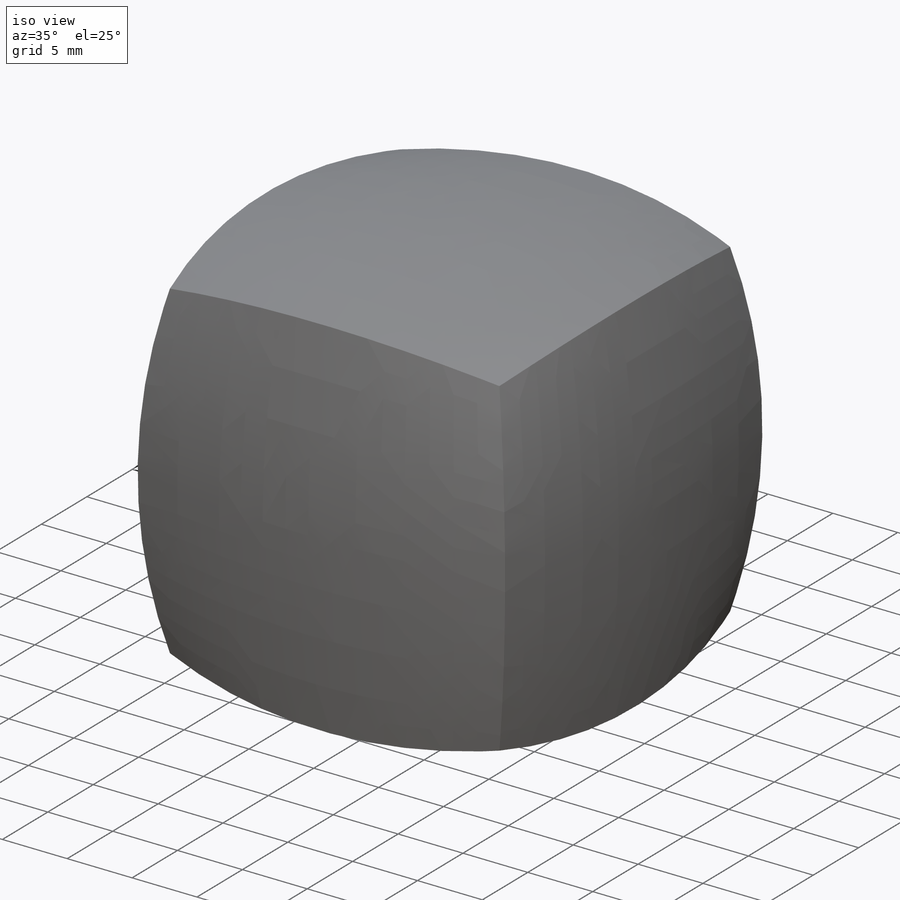
[diagram: iso view]
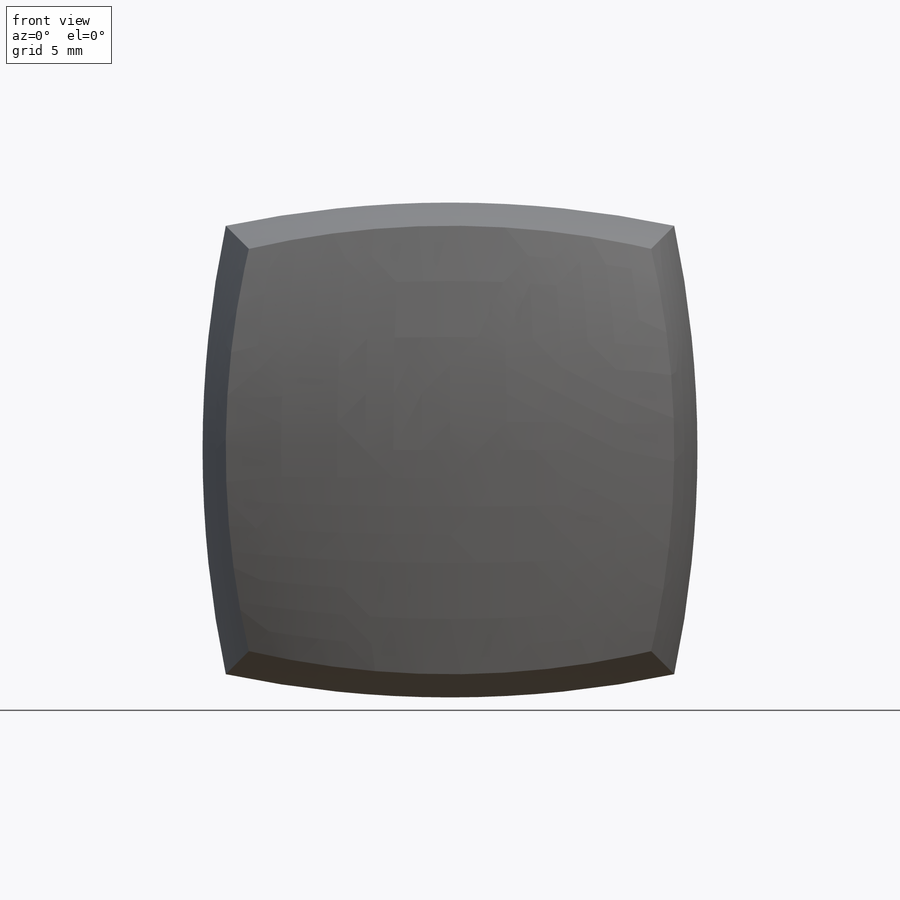
[diagram: front view]
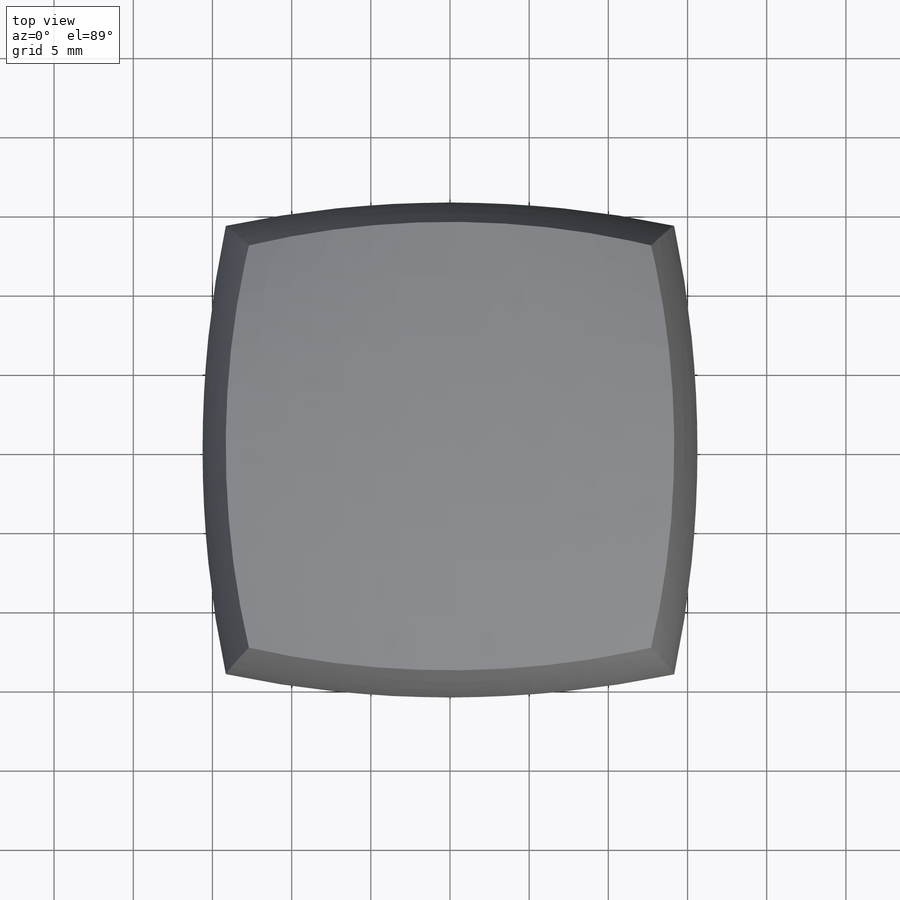
[diagram: top view]
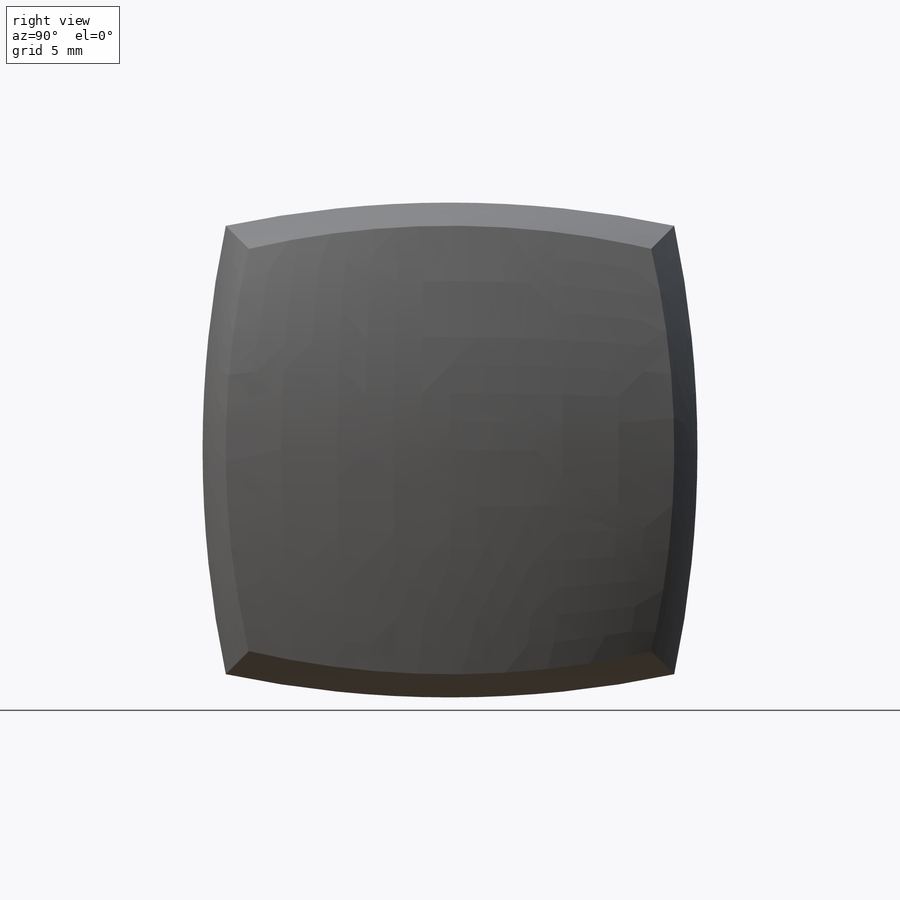
[diagram: right view]
SOLIDWORKS PART (.sldprt)
format: sldprt  version: not decoded by parser v0  size: 245,760 bytes
history: native  units: mm
features: sketch x5, plane x4, pattern_circular x2, material x1, extrude x1 + 1 further entry (+16 scaffold rows collapsed; 1 parser-record rows omitted)
feature tree (31):
  scaffold x16  (default folders/planes/origin — collapsed)
  material  "Material <not specified>"
  "Annotations"  RD1=25.4mm
  sketch  "Sketch1"  dims[D1=25.4mm D2=25.4mm]
  extrude  "Extrude1"  Depth=25.4mm
  parser-record x1  (decoder bookkeeping rows leaked as tree rows — omitted from the tree; the rows remain in map.json)
  plane  "Plane2"
  sketch  "Sketch5"  dims[D1=20.0mm]
  plane  "Plane3"
  sketch  "Sketch6"  dims[D1=20.0mm]
  plane  "Plane4"
  sketch  "Sketch7"  dims[D1=20.0mm]
  plane  "Plane5"
  sketch  "Sketch8"  dims[D1=20.0mm]
  pattern_circular  "CirPattern3"  Count=4 Angle=360deg
  pattern_circular  "CirPattern5"  Count=4 Angle=360deg
decode coverage: 8 of 8 modeling features carry decoded parameters; 1 rows unclassified (native names shown)
note: suppression state not decoded; provenance and decode notes live in map.json
